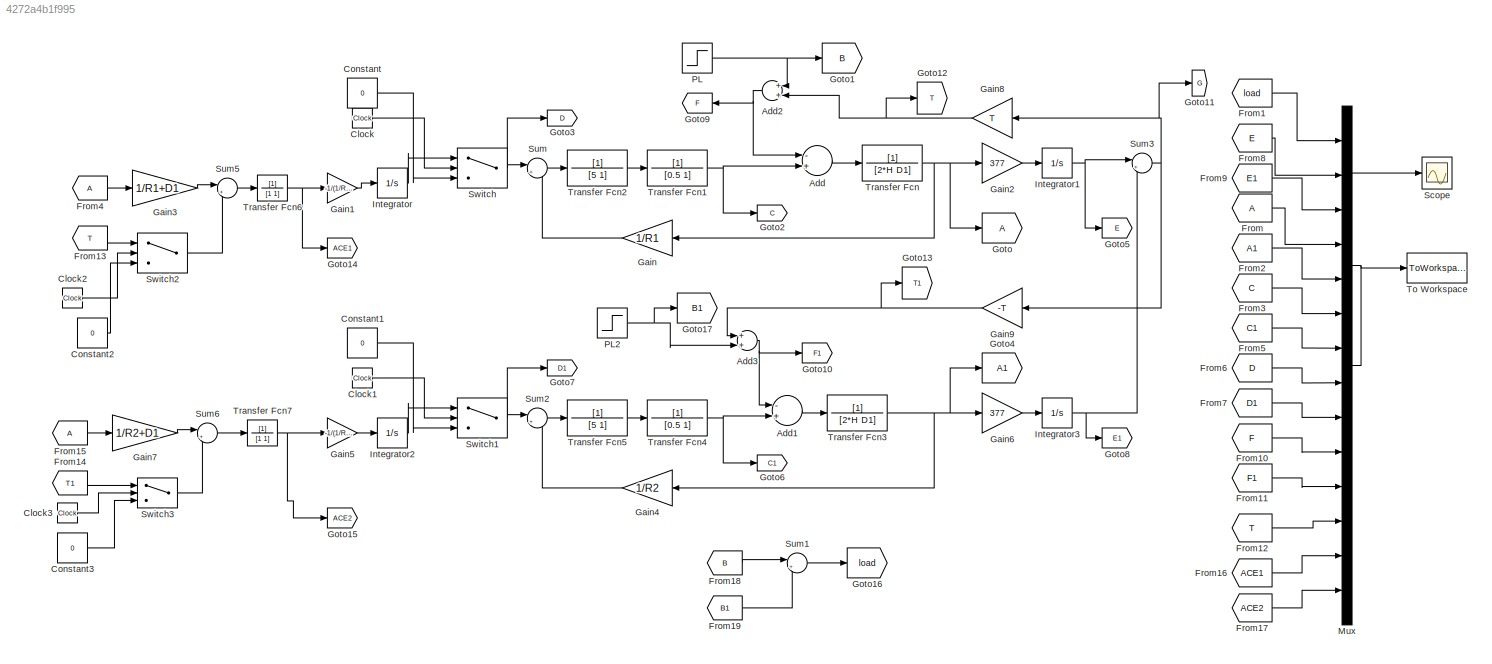
MODEL slx_4272a4b1f995
KIND model
CONFIG InitFcn = R1 = 0.05;\nR2 = 0.1;\nH = 5; \nD1 =1;\nT =1; 
BLOCK [Sum] Add
  InputSameDT = off
  Inputs = -+
  OutDataTypeStr = Inherit: Inherit via internal rule
  Ports = [2, 1]
  SaturateOnIntegerOverflow = off
BLOCK [Sum] Add1
  InputSameDT = off
  Inputs = -+
  OutDataTypeStr = Inherit: Inherit via internal rule
  Ports = [2, 1]
  SaturateOnIntegerOverflow = off
BLOCK [Sum] Add2
  InputSameDT = off
  OutDataTypeStr = Inherit: Inherit via internal rule
  Ports = [2, 1]
  SaturateOnIntegerOverflow = off
BLOCK [Sum] Add3
  InputSameDT = off
  OutDataTypeStr = Inherit: Inherit via internal rule
  Ports = [2, 1]
  SaturateOnIntegerOverflow = off
BLOCK [Clock] Clock
BLOCK [Clock] Clock1
BLOCK [Clock] Clock2
BLOCK [Clock] Clock3
BLOCK [Constant] Constant
  Value = 0
BLOCK [Constant] Constant1
  Value = 0
BLOCK [Constant] Constant2
  Value = 0
BLOCK [Constant] Constant3
  Value = 0
BLOCK [From] From
BLOCK [From] From1
  GotoTag = load
BLOCK [From] From10
  GotoTag = F
BLOCK [From] From11
  GotoTag = F1
BLOCK [From] From12
  GotoTag = T
BLOCK [From] From13
  GotoTag = T
BLOCK [From] From14
  GotoTag = T1
BLOCK [From] From15
BLOCK [From] From16
  GotoTag = ACE1
BLOCK [From] From17
  GotoTag = ACE2
BLOCK [From] From18
  GotoTag = B
BLOCK [From] From19
  GotoTag = B1
BLOCK [From] From2
  GotoTag = A1
BLOCK [From] From3
  GotoTag = C
BLOCK [From] From4
BLOCK [From] From5
  GotoTag = C1
BLOCK [From] From6
  GotoTag = D
BLOCK [From] From7
  GotoTag = D1
BLOCK [From] From8
  GotoTag = E
BLOCK [From] From9
  GotoTag = E1
BLOCK [Gain] Gain
  Gain = 1/R1
  OutDataTypeStr = Inherit: Inherit via internal rule
  ParamDataTypeStr = Inherit: Inherit via internal rule
  SaturateOnIntegerOverflow = off
BLOCK [Gain] Gain1
  Gain = -1/(1/R1+D1)
  OutDataTypeStr = Inherit: Inherit via internal rule
  ParamDataTypeStr = Inherit: Inherit via internal rule
  SaturateOnIntegerOverflow = off
BLOCK [Gain] Gain2
  Gain = 377
  OutDataTypeStr = Inherit: Inherit via internal rule
  ParamDataTypeStr = Inherit: Inherit via internal rule
  SaturateOnIntegerOverflow = off
BLOCK [Gain] Gain3
  Gain = 1/R1+D1
  OutDataTypeStr = Inherit: Inherit via internal rule
  ParamDataTypeStr = Inherit: Inherit via internal rule
  SaturateOnIntegerOverflow = off
BLOCK [Gain] Gain4
  Gain = 1/R2
  OutDataTypeStr = Inherit: Inherit via internal rule
  ParamDataTypeStr = Inherit: Inherit via internal rule
  SaturateOnIntegerOverflow = off
BLOCK [Gain] Gain5
  Gain = -1/(1/R1+D1)
  OutDataTypeStr = Inherit: Inherit via internal rule
  ParamDataTypeStr = Inherit: Inherit via internal rule
  SaturateOnIntegerOverflow = off
BLOCK [Gain] Gain6
  Gain = 377
  OutDataTypeStr = Inherit: Inherit via internal rule
  ParamDataTypeStr = Inherit: Inherit via internal rule
  SaturateOnIntegerOverflow = off
BLOCK [Gain] Gain7
  Gain = 1/R2+D1
  OutDataTypeStr = Inherit: Inherit via internal rule
  ParamDataTypeStr = Inherit: Inherit via internal rule
  SaturateOnIntegerOverflow = off
BLOCK [Gain] Gain8
  Gain = T
  OutDataTypeStr = Inherit: Inherit via internal rule
  ParamDataTypeStr = Inherit: Inherit via internal rule
  SaturateOnIntegerOverflow = off
BLOCK [Gain] Gain9
  Gain = -T
  OutDataTypeStr = Inherit: Inherit via internal rule
  ParamDataTypeStr = Inherit: Inherit via internal rule
  SaturateOnIntegerOverflow = off
BLOCK [Goto] Goto
BLOCK [Goto] Goto1
  GotoTag = B
BLOCK [Goto] Goto10
  GotoTag = F1
BLOCK [Goto] Goto11
  GotoTag = G
BLOCK [Goto] Goto12
  GotoTag = T
BLOCK [Goto] Goto13
  GotoTag = T1
BLOCK [Goto] Goto14
  GotoTag = ACE1
BLOCK [Goto] Goto15
  GotoTag = ACE2
BLOCK [Goto] Goto16
  GotoTag = load
BLOCK [Goto] Goto17
  GotoTag = B1
BLOCK [Goto] Goto2
  GotoTag = C
BLOCK [Goto] Goto3
  GotoTag = D
BLOCK [Goto] Goto4
  GotoTag = A1
BLOCK [Goto] Goto5
  GotoTag = E
BLOCK [Goto] Goto6
  GotoTag = C1
BLOCK [Goto] Goto7
  GotoTag = D1
BLOCK [Goto] Goto8
  GotoTag = E1
BLOCK [Goto] Goto9
  GotoTag = F
BLOCK [Integrator] Integrator
  Ports = [1, 1]
BLOCK [Integrator] Integrator1
  Ports = [1, 1]
BLOCK [Integrator] Integrator2
  Ports = [1, 1]
BLOCK [Integrator] Integrator3
  Ports = [1, 1]
BLOCK [Mux] Mux
  DisplayOption = bar
  Inputs = 14
  Ports = [14, 1]
BLOCK [Step] PL
  After = 0.2
  SampleTime = 0
  Time = 10
BLOCK [Step] PL2
  After = 0.3
  SampleTime = 0
  Time = 210
BLOCK [Scope] Scope
  DataFormat = StructureWithTime
  Floating = off
  NumInputPorts = 1
  Ports = [1]
  SampleTime = 0
  ShowLegends = off
BLOCK [Sum] Sum
  IconShape = round
  InputSameDT = off
  Inputs = |+-
  OutDataTypeStr = Inherit: Inherit via internal rule
  Ports = [2, 1]
  SaturateOnIntegerOverflow = off
BLOCK [Sum] Sum1
  IconShape = round
  InputSameDT = off
  Inputs = |++
  OutDataTypeStr = Inherit: Inherit via internal rule
  Ports = [2, 1]
  SaturateOnIntegerOverflow = off
BLOCK [Sum] Sum2
  IconShape = round
  InputSameDT = off
  Inputs = |+-
  OutDataTypeStr = Inherit: Inherit via internal rule
  Ports = [2, 1]
  SaturateOnIntegerOverflow = off
BLOCK [Sum] Sum3
  IconShape = round
  InputSameDT = off
  Inputs = |+-
  OutDataTypeStr = Inherit: Inherit via internal rule
  Ports = [2, 1]
  SaturateOnIntegerOverflow = off
BLOCK [Sum] Sum5
  IconShape = round
  InputSameDT = off
  Inputs = |++
  OutDataTypeStr = Inherit: Inherit via internal rule
  Ports = [2, 1]
  SaturateOnIntegerOverflow = off
BLOCK [Sum] Sum6
  IconShape = round
  InputSameDT = off
  Inputs = |++
  OutDataTypeStr = Inherit: Inherit via internal rule
  Ports = [2, 1]
  SaturateOnIntegerOverflow = off
BLOCK [Switch] Switch
  InputSameDT = off
  SaturateOnIntegerOverflow = off
  Threshold = 100
BLOCK [Switch] Switch1
  InputSameDT = off
  SaturateOnIntegerOverflow = off
  Threshold = 300
BLOCK [Switch] Switch2
  InputSameDT = off
  SaturateOnIntegerOverflow = off
  Threshold = 500
BLOCK [Switch] Switch3
  InputSameDT = off
  SaturateOnIntegerOverflow = off
  Threshold = 500
BLOCK [ToWorkspace] To Workspace
  MaxDataPoints = inf
  Ports = [1]
  SampleTime = -1
  SaveFormat = Timeseries
  VariableName = simout
BLOCK [TransferFcn] Transfer Fcn
  Denominator = [2*H D1]
BLOCK [TransferFcn] Transfer Fcn1
  Denominator = [0.5 1]
BLOCK [TransferFcn] Transfer Fcn2
  Denominator = [5 1]
BLOCK [TransferFcn] Transfer Fcn3
  Denominator = [2*H D1]
BLOCK [TransferFcn] Transfer Fcn4
  Denominator = [0.5 1]
BLOCK [TransferFcn] Transfer Fcn5
  Denominator = [5 1]
BLOCK [TransferFcn] Transfer Fcn6
  Denominator = [1 1]
BLOCK [TransferFcn] Transfer Fcn7
  Denominator = [1 1]
LINE Add1:1 -> Transfer Fcn3:1
NET Add2:1 -> Add:1, Goto9:1
NET Add3:1 -> Add1:1, Goto10:1
LINE Add:1 -> Transfer Fcn:1
LINE Clock1:1 -> Switch1:2
LINE Clock2:1 -> Switch2:2
LINE Clock3:1 -> Switch3:2
LINE Clock:1 -> Switch:2
LINE Constant1:1 -> Switch1:3
LINE Constant2:1 -> Switch2:3
LINE Constant3:1 -> Switch3:3
LINE Constant:1 -> Switch:3
LINE From10:1 -> Mux:10
LINE From11:1 -> Mux:11
LINE From12:1 -> Mux:12
LINE From13:1 -> Switch2:1
LINE From14:1 -> Switch3:1
LINE From15:1 -> Gain7:1
LINE From16:1 -> Mux:13
LINE From17:1 -> Mux:14
LINE From18:1 -> Sum1:1
LINE From19:1 -> Sum1:2
LINE From1:1 -> Mux:1
LINE From2:1 -> Mux:5
LINE From3:1 -> Mux:6
LINE From4:1 -> Gain3:1
LINE From5:1 -> Mux:7
LINE From6:1 -> Mux:8
LINE From7:1 -> Mux:9
LINE From8:1 -> Mux:2
LINE From9:1 -> Mux:3
LINE From:1 -> Mux:4
LINE Gain1:1 -> Integrator:1
LINE Gain2:1 -> Integrator1:1
LINE Gain3:1 -> Sum5:1
LINE Gain4:1 -> Sum2:2
LINE Gain5:1 -> Integrator2:1
LINE Gain6:1 -> Integrator3:1
LINE Gain7:1 -> Sum6:1
NET Gain8:1 -> Add2:2, Goto12:1
NET Gain9:1 -> Add3:1, Goto13:1
LINE Gain:1 -> Sum:2
NET Integrator1:1 -> Goto5:1, Sum3:1
LINE Integrator2:1 -> Switch1:1
NET Integrator3:1 -> Goto8:1, Sum3:2
LINE Integrator:1 -> Switch:1
NET Mux:1 -> Scope:1, To Workspace:1
NET PL2:1 -> Add3:2, Goto17:1
NET PL:1 -> Add2:1, Goto1:1
LINE Sum1:1 -> Goto16:1
LINE Sum2:1 -> Transfer Fcn5:1
NET Sum3:1 -> Gain8:1, Gain9:1, Goto11:1
LINE Sum5:1 -> Transfer Fcn6:1
LINE Sum6:1 -> Transfer Fcn7:1
LINE Sum:1 -> Transfer Fcn2:1
NET Switch1:1 -> Goto7:1, Sum2:1
LINE Switch2:1 -> Sum5:2
LINE Switch3:1 -> Sum6:2
NET Switch:1 -> Goto3:1, Sum:1
NET Transfer Fcn1:1 -> Add:2, Goto2:1
LINE Transfer Fcn2:1 -> Transfer Fcn1:1
NET Transfer Fcn3:1 -> Gain4:1, Gain6:1, Goto4:1
NET Transfer Fcn4:1 -> Add1:2, Goto6:1
LINE Transfer Fcn5:1 -> Transfer Fcn4:1
NET Transfer Fcn6:1 -> Gain1:1, Goto14:1
NET Transfer Fcn7:1 -> Gain5:1, Goto15:1
NET Transfer Fcn:1 -> Gain2:1, Gain:1, Goto:1
note: NET lines group one-source signal fan-out (src -> all destinations, sorted); 1:1 wires keep LINE
